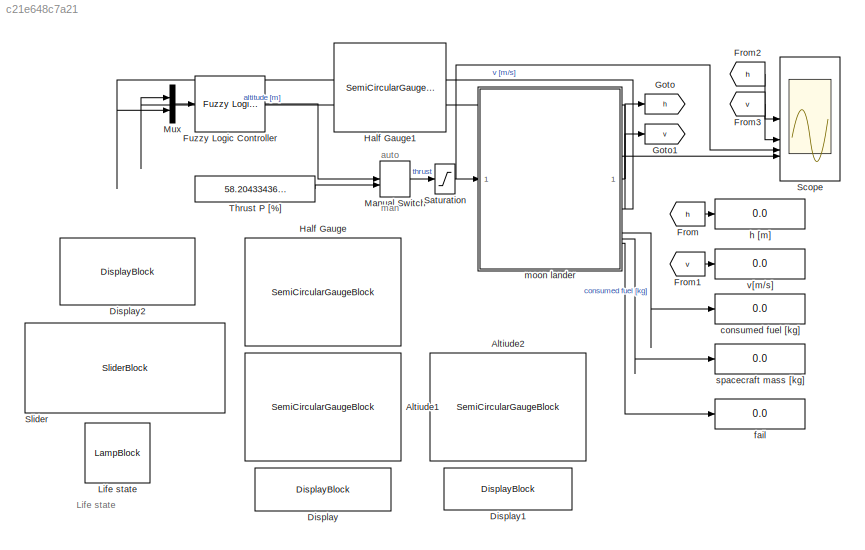
MODEL slx_c21e648c7a21
KIND model
CONFIG AbsTol = auto
CONFIG EnableMultiTasking = off
CONFIG FixedStep = 0.1
CONFIG MaxStep = auto
CONFIG MinStep = auto
CONFIG RelTol = 1e-3
CONFIG SampleTimeConstraint = Unconstrained
CONFIG SolverName = ode2
CONFIG StartTime = 0.0
CONFIG StopTime = inf
BLOCK [SemiCircularGaugeBlock] Altiude1
  ScaleMax = 200
BLOCK [SemiCircularGaugeBlock] Altiude2
  ScaleMax = 20
  ScaleMin = -120
BLOCK [DisplayBlock] Display
  Format = Integer
  LabelPosition = Bottom
  Transparency = 1
BLOCK [DisplayBlock] Display1
  Format = Integer
  LabelPosition = Bottom
  Transparency = 1
BLOCK [DisplayBlock] Display2
  Format = Integer
  LabelPosition = Bottom
  Transparency = 1
BLOCK [From] From
  GotoTag = h
BLOCK [From] From1
  GotoTag = v
BLOCK [From] From2
  GotoTag = h
BLOCK [From] From3
  GotoTag = v
BLOCK [Reference] Fuzzy Logic Controller  REF=fuzblock/Fuzzy Logic   (lib defined in mdl_858b3b3e7478)
Controller
  SourceBlock = fuzblock/Fuzzy Logic \nController
  SourceType = Fuzzy Inference System
BLOCK [Goto] Goto
  GotoTag = h
BLOCK [Goto] Goto1
  GotoTag = v
BLOCK [SemiCircularGaugeBlock] Half Gauge
  ScaleMax = 10
BLOCK [SemiCircularGaugeBlock] Half Gauge1
BLOCK [LampBlock] Life state
  LabelPosition = Hide
BLOCK [ManualSwitch] Manual Switch
BLOCK [Mux] Mux
  DisplayOption = bar
  Inputs = 2
BLOCK [Saturate] Saturation
  LowerLimit = 0
  UpperLimit = 100
BLOCK [Scope] Scope
  Floating = off
  NumInputPorts = 4
  ScopeSpecificationString = Simulink.scopes.TimeScopeBlockCfg('CurrentConfiguration', extmgr.ConfigurationSet(extmgr.Configuration('Core','General UI',true,'FigureColor',[1 1 1]),extmgr.Configuration('Core','Source UI',true),extmgr.Configuration('Sources','WiredSimulink',true),extmgr.Configuration('Visuals','Time Domain',true,'SerializedDisplays',{struct('MinYLimReal','-1250.02922','MaxYLimReal','11250.00325','YLabelReal','m...<+4147ch>
BLOCK [SliderBlock] Slider
BLOCK [Constant] Thrust P [%]
  Value = 58.20433436532507
BLOCK [Display] consumed fuel [kg]
  Decimation = 1
BLOCK [Display] fail
  Decimation = 1
BLOCK [Display] h [m]
  Decimation = 1
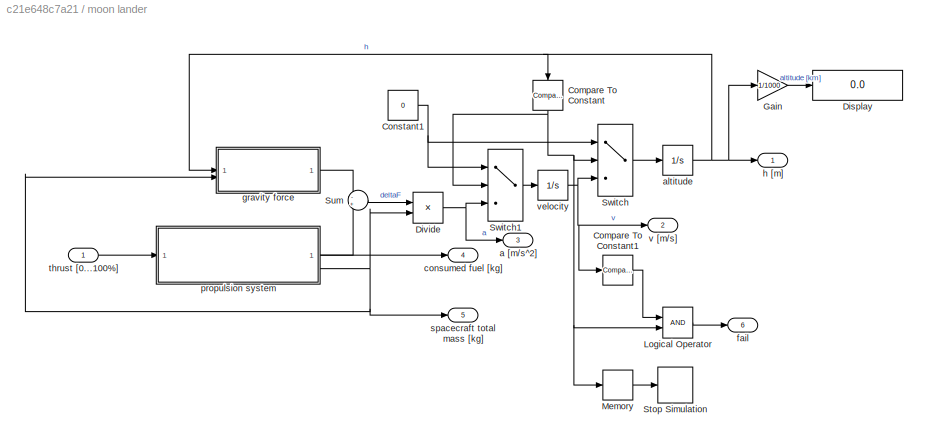
BLOCK [SubSystem] moon lander
BLOCK [Reference] moon lander/Compare To Constant  REF=simulink/Logic and Bit
Operations/Compare
To Constant
  NameLocation = left
  SourceBlock = simulink/Logic and Bit\nOperations/Compare\nTo Constant
  SourceType = Compare To Constant
BLOCK [Reference] moon lander/Compare To Constant1  REF=simulink/Logic and Bit
Operations/Compare
To Constant
  SourceBlock = simulink/Logic and Bit\nOperations/Compare\nTo Constant
  SourceType = Compare To Constant
BLOCK [Constant] moon lander/Constant1
  Value = 0
BLOCK [Display] moon lander/Display
  Decimation = 1
BLOCK [Product] moon lander/Divide
  Inputs = */
BLOCK [Gain] moon lander/Gain
  Gain = 1/1000
BLOCK [Logic] moon lander/Logical Operator
  AllPortsSameDT = off
  OutDataTypeStr = boolean
BLOCK [Memory] moon lander/Memory
BLOCK [Stop] moon lander/Stop Simulation
BLOCK [Sum] moon lander/Sum
  Inputs = -+
BLOCK [Switch] moon lander/Switch
  Criteria = u2 > Threshold
  InputSameDT = off
  SaturateOnIntegerOverflow = off
BLOCK [Switch] moon lander/Switch1
  Criteria = u2 > Threshold
  InputSameDT = off
  SaturateOnIntegerOverflow = off
BLOCK [Outport] moon lander/a [m//s^2]
  Port = 3
BLOCK [Integrator] moon lander/altitude
  InitialCondition = h0
BLOCK [Outport] moon lander/consumed fuel [kg]
  Port = 4
BLOCK [Outport] moon lander/fail
  Port = 6
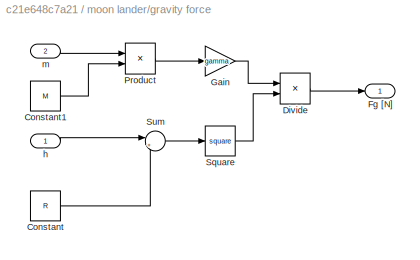
BLOCK [SubSystem] moon lander/gravity force
BLOCK [Constant] moon lander/gravity force/Constant
  Value = R
BLOCK [Constant] moon lander/gravity force/Constant1
  Value = M
BLOCK [Product] moon lander/gravity force/Divide
  Inputs = */
BLOCK [Outport] moon lander/gravity force/Fg [N]
BLOCK [Gain] moon lander/gravity force/Gain
  Gain = gamma
BLOCK [Product] moon lander/gravity force/Product
BLOCK [Math] moon lander/gravity force/Square
  Operator = square
BLOCK [Sum] moon lander/gravity force/Sum
  Inputs = |++
BLOCK [Inport] moon lander/gravity force/h
BLOCK [Inport] moon lander/gravity force/m
  Port = 2
BLOCK [Outport] moon lander/h [m]
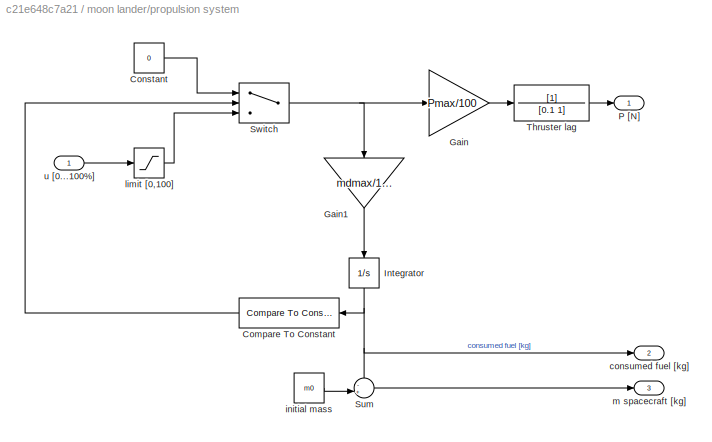
BLOCK [SubSystem] moon lander/propulsion system
BLOCK [Reference] moon lander/propulsion system/Compare To Constant  REF=simulink/Logic and Bit
Operations/Compare
To Constant
  SourceBlock = simulink/Logic and Bit\nOperations/Compare\nTo Constant
  SourceType = Compare To Constant
BLOCK [Constant] moon lander/propulsion system/Constant
  Value = 0
BLOCK [Gain] moon lander/propulsion system/Gain
  Gain = Pmax/100
BLOCK [Gain] moon lander/propulsion system/Gain1
  Gain = mdmax/100
  NameLocation = left
BLOCK [Integrator] moon lander/propulsion system/Integrator
  LowerSaturationLimit = 0
  NameLocation = left
  UpperSaturationLimit = m0_fuel
BLOCK [Outport] moon lander/propulsion system/P [N]
BLOCK [Sum] moon lander/propulsion system/Sum
  Inputs = -+|
BLOCK [Switch] moon lander/propulsion system/Switch
  Criteria = u2 > Threshold
  InputSameDT = off
  SaturateOnIntegerOverflow = off
BLOCK [TransferFcn] moon lander/propulsion system/Thruster lag
  Denominator = [0.1 1]
BLOCK [Outport] moon lander/propulsion system/consumed fuel [kg]
  Port = 2
BLOCK [Constant] moon lander/propulsion system/initial mass
  Value = m0
BLOCK [Saturate] moon lander/propulsion system/limit [0,100]
  LowerLimit = 0
  UpperLimit = 100
BLOCK [Outport] moon lander/propulsion system/m spacecraft [kg]
  Port = 3
BLOCK [Inport] moon lander/propulsion system/u [0...100%]
BLOCK [Outport] moon lander/spacecraft total mass [kg]
  Port = 5
BLOCK [Inport] moon lander/thrust [0...100%]
BLOCK [Outport] moon lander/v [m//s]
  Port = 2
BLOCK [Integrator] moon lander/velocity
BLOCK [Display] spacecraft mass [kg]
  Decimation = 1
BLOCK [Display] v[m//s]
  Decimation = 1
ANNOTATION (root): Life state
ANNOTATION (root): auto
ANNOTATION (root): man
LINE From1:1 -> v[m//s]:1
LINE From2:1 -> Scope:1
LINE From3:1 -> Scope:2
LINE From:1 -> h [m]:1
LINE Fuzzy Logic Controller:1 -> Manual Switch:1
LINE Manual Switch:1 -> Saturation:1
LINE Mux:1 -> Fuzzy Logic Controller:1
NET Saturation:1 -> Scope:3, moon lander:1
LINE Thrust P [%]:1 -> Manual Switch:2
LINE moon lander/Compare To Constant1:1 -> moon lander/Logical Operator:1
NET moon lander/Compare To Constant:1 -> moon lander/Logical Operator:2, moon lander/Memory:1, moon lander/Switch1:2, moon lander/Switch:2
NET moon lander/Constant1:1 -> moon lander/Switch1:1, moon lander/Switch:1
NET moon lander/Divide:1 -> moon lander/Switch1:3, moon lander/a [m//s^2]:1
LINE moon lander/Gain:1 -> moon lander/Display:1
LINE moon lander/Logical Operator:1 -> moon lander/fail:1
LINE moon lander/Memory:1 -> moon lander/Stop Simulation:1
LINE moon lander/Sum:1 -> moon lander/Divide:1
LINE moon lander/Switch1:1 -> moon lander/velocity:1
LINE moon lander/Switch:1 -> moon lander/altitude:1
NET moon lander/altitude:1 -> moon lander/Compare To Constant:1, moon lander/Gain:1, moon lander/gravity force:1, moon lander/h [m]:1
LINE moon lander/gravity force/Constant1:1 -> moon lander/gravity force/Product:2
LINE moon lander/gravity force/Constant:1 -> moon lander/gravity force/Sum:2
LINE moon lander/gravity force/Divide:1 -> moon lander/gravity force/Fg [N]:1
LINE moon lander/gravity force/Gain:1 -> moon lander/gravity force/Divide:1
LINE moon lander/gravity force/Product:1 -> moon lander/gravity force/Gain:1
LINE moon lander/gravity force/Square:1 -> moon lander/gravity force/Divide:2
LINE moon lander/gravity force/Sum:1 -> moon lander/gravity force/Square:1
LINE moon lander/gravity force/h:1 -> moon lander/gravity force/Sum:1
LINE moon lander/gravity force/m:1 -> moon lander/gravity force/Product:1
LINE moon lander/gravity force:1 -> moon lander/Sum:1
LINE moon lander/propulsion system/Compare To Constant:1 -> moon lander/propulsion system/Switch:2
LINE moon lander/propulsion system/Constant:1 -> moon lander/propulsion system/Switch:1
LINE moon lander/propulsion system/Gain1:1 -> moon lander/propulsion system/Integrator:1
LINE moon lander/propulsion system/Gain:1 -> moon lander/propulsion system/Thruster lag:1
NET moon lander/propulsion system/Integrator:1 -> moon lander/propulsion system/Compare To Constant:1, moon lander/propulsion system/Sum:1, moon lander/propulsion system/consumed fuel [kg]:1
LINE moon lander/propulsion system/Sum:1 -> moon lander/propulsion system/m spacecraft [kg]:1
NET moon lander/propulsion system/Switch:1 -> moon lander/propulsion system/Gain1:1, moon lander/propulsion system/Gain:1
LINE moon lander/propulsion system/Thruster lag:1 -> moon lander/propulsion system/P [N]:1
LINE moon lander/propulsion system/initial mass:1 -> moon lander/propulsion system/Sum:2
LINE moon lander/propulsion system/limit [0,100]:1 -> moon lander/propulsion system/Switch:3
LINE moon lander/propulsion system/u [0...100%]:1 -> moon lander/propulsion system/limit [0,100]:1
LINE moon lander/propulsion system:1 -> moon lander/Sum:2
LINE moon lander/propulsion system:2 -> moon lander/consumed fuel [kg]:1
NET moon lander/propulsion system:3 -> moon lander/Divide:2, moon lander/gravity force:2, moon lander/spacecraft total mass [kg]:1
LINE moon lander/thrust [0...100%]:1 -> moon lander/propulsion system:1
NET moon lander/velocity:1 -> moon lander/Compare To Constant1:1, moon lander/Switch:3, moon lander/v [m//s]:1
NET moon lander:1 -> Goto:1, Mux:1
NET moon lander:2 -> Goto1:1, Mux:2
LINE moon lander:3 -> Scope:4
LINE moon lander:4 -> consumed fuel [kg]:1
LINE moon lander:5 -> spacecraft mass [kg]:1
LINE moon lander:6 -> fail:1
note: NET lines group one-source signal fan-out (src -> all destinations, sorted); 1:1 wires keep LINE
